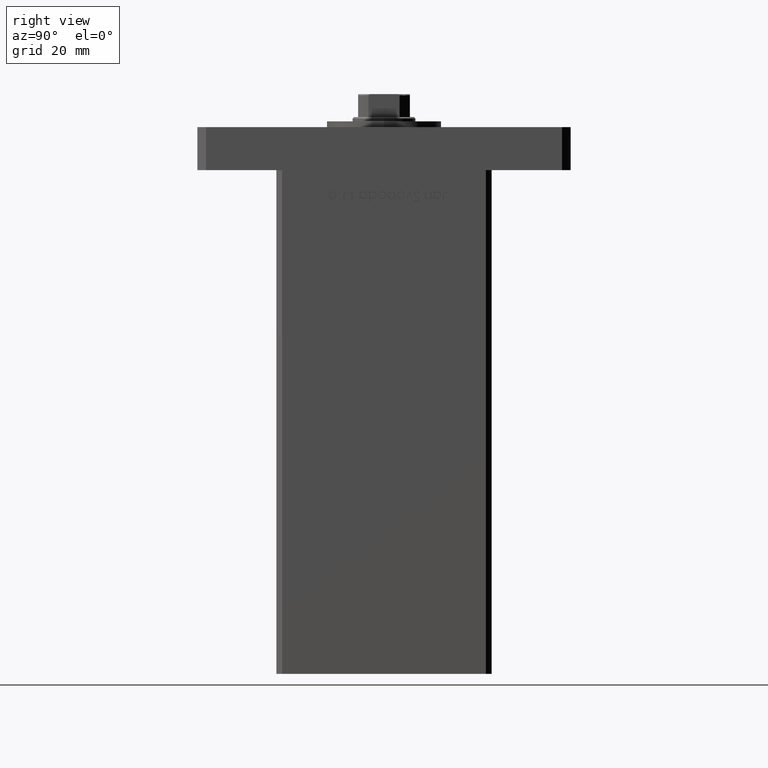
[diagram: clean part render]
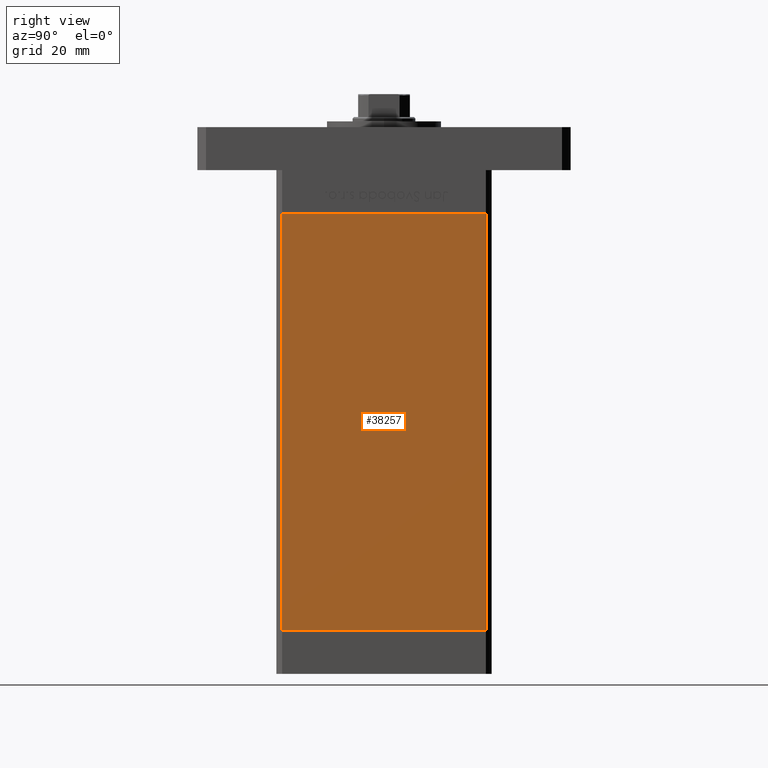
[diagram: same view with one face highlighted and labeled with its STEP entity id]
A machine part, right view. The second image highlights one B-rep face of the part: STEP entity #38257.
In plain terms, the highlighted planar face has unit normal (1, -0, 0).
Its self-contained STEP definition (entity closure, byte-faithful):
#341 = ORIENTED_EDGE ( 'NONE', *, *, #18599, .T. ) ;
#3679 = DIRECTION ( 'NONE',  ( -2.931927001650941360E-16, -1.000000000000000000, 0.000000000000000000 ) ) ;
#3795 = CARTESIAN_POINT ( 'NONE',  ( 42.50000000000000711, 35.50000000000001421, 0.000000000000000000 ) ) ;
#4696 = VERTEX_POINT ( 'NONE', #21219 ) ;
#5184 = DIRECTION ( 'NONE',  ( -0.000000000000000000, -0.000000000000000000, -1.000000000000000000 ) ) ;
#5963 = LINE ( 'NONE', #30403, #29944 ) ;
#6933 = CARTESIAN_POINT ( 'NONE',  ( 42.50000000000000711, 35.50000000000001421, 145.5000000000000000 ) ) ;
#7227 = VERTEX_POINT ( 'NONE', #44588 ) ;
#7877 = DIRECTION ( 'NONE',  ( -2.931927001650941360E-16, -1.000000000000000000, 0.000000000000000000 ) ) ;
#8133 = DIRECTION ( 'NONE',  ( 2.931927001650941360E-16, 1.000000000000000000, 0.000000000000000000 ) ) ;
#10690 = VERTEX_POINT ( 'NONE', #30423 ) ;
#12203 = CARTESIAN_POINT ( 'NONE',  ( 42.50000000000000711, 35.50000000000001421, 145.5000000000000000 ) ) ;
#15067 = DIRECTION ( 'NONE',  ( -0.000000000000000000, -0.000000000000000000, -1.000000000000000000 ) ) ;
#15870 = LINE ( 'NONE', #6933, #20014 ) ;
#18599 = EDGE_CURVE ( 'NONE', #41514, #4696, #5963, .T. ) ;
#20014 = VECTOR ( 'NONE', #15067, 1000.000000000000000 ) ;
#20950 = EDGE_CURVE ( 'NONE', #10690, #41514, #52230, .T. ) ;
#21219 = CARTESIAN_POINT ( 'NONE',  ( 42.49999999999998579, -35.50000000000000711, 0.000000000000000000 ) ) ;
#25036 = EDGE_CURVE ( 'NONE', #7227, #4696, #48828, .T. ) ;
#25095 = AXIS2_PLACEMENT_3D ( 'NONE', #12203, #45297, #8133 ) ;
#25284 = ORIENTED_EDGE ( 'NONE', *, *, #42400, .F. ) ;
#29944 = VECTOR ( 'NONE', #5184, 1000.000000000000000 ) ;
#30403 = CARTESIAN_POINT ( 'NONE',  ( 42.49999999999998579, -35.50000000000000711, 145.5000000000000000 ) ) ;
#30423 = CARTESIAN_POINT ( 'NONE',  ( 42.50000000000000711, 35.50000000000001421, 145.5000000000000000 ) ) ;
#30819 = EDGE_LOOP ( 'NONE', ( #38330, #25284, #50316, #341 ) ) ;
#38257 = ADVANCED_FACE ( 'NONE', ( #53151 ), #53421, .T. ) ;
#38330 = ORIENTED_EDGE ( 'NONE', *, *, #25036, .F. ) ;
#39518 = VECTOR ( 'NONE', #3679, 1000.000000000000000 ) ;
#40571 = CARTESIAN_POINT ( 'NONE',  ( 42.50000000000000711, 35.50000000000001421, 145.5000000000000000 ) ) ;
#41514 = VERTEX_POINT ( 'NONE', #51676 ) ;
#42400 = EDGE_CURVE ( 'NONE', #10690, #7227, #15870, .T. ) ;
#43001 = VECTOR ( 'NONE', #7877, 1000.000000000000000 ) ;
#44588 = CARTESIAN_POINT ( 'NONE',  ( 42.50000000000000711, 35.50000000000001421, 0.000000000000000000 ) ) ;
#45297 = DIRECTION ( 'NONE',  ( 1.000000000000000000, -2.931927001650941360E-16, 0.000000000000000000 ) ) ;
#48828 = LINE ( 'NONE', #3795, #43001 ) ;
#50316 = ORIENTED_EDGE ( 'NONE', *, *, #20950, .T. ) ;
#51676 = CARTESIAN_POINT ( 'NONE',  ( 42.49999999999998579, -35.50000000000000711, 145.5000000000000000 ) ) ;
#52230 = LINE ( 'NONE', #40571, #39518 ) ;
#53151 = FACE_OUTER_BOUND ( 'NONE', #30819, .T. ) ;
#53421 = PLANE ( 'NONE',  #25095 ) ;